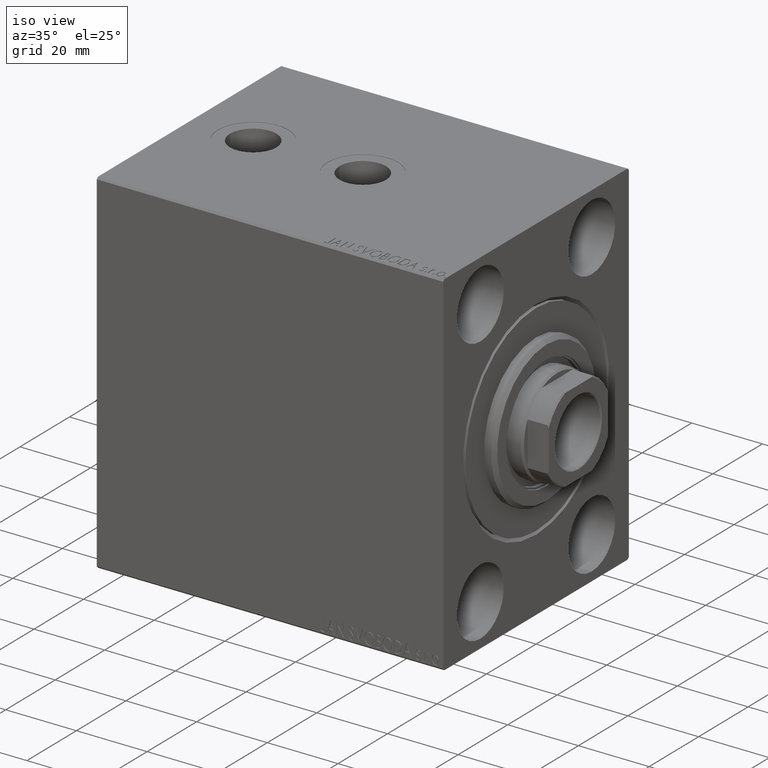
[diagram: clean part render]
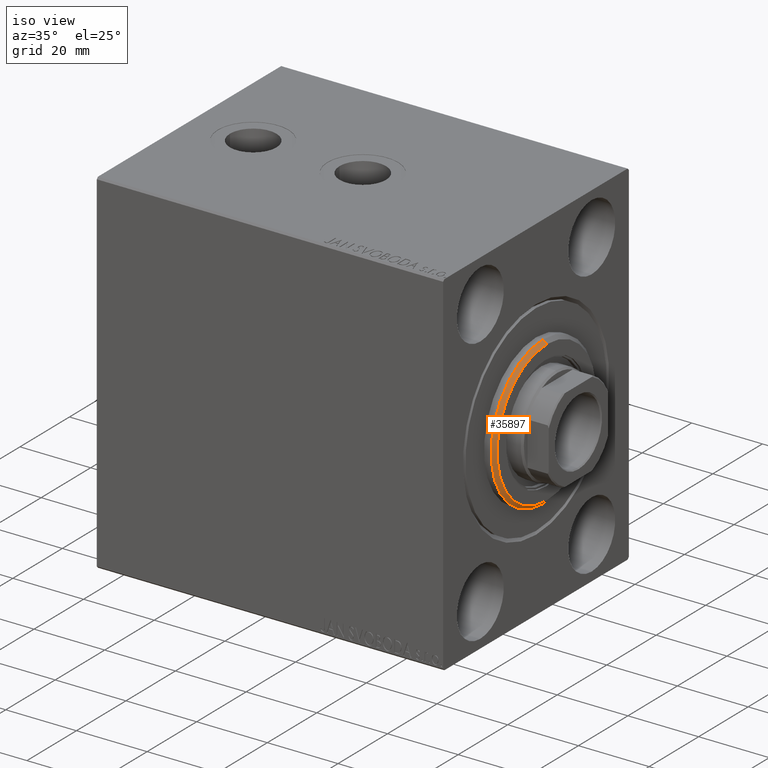
[diagram: same view with one face highlighted and labeled with its STEP entity id]
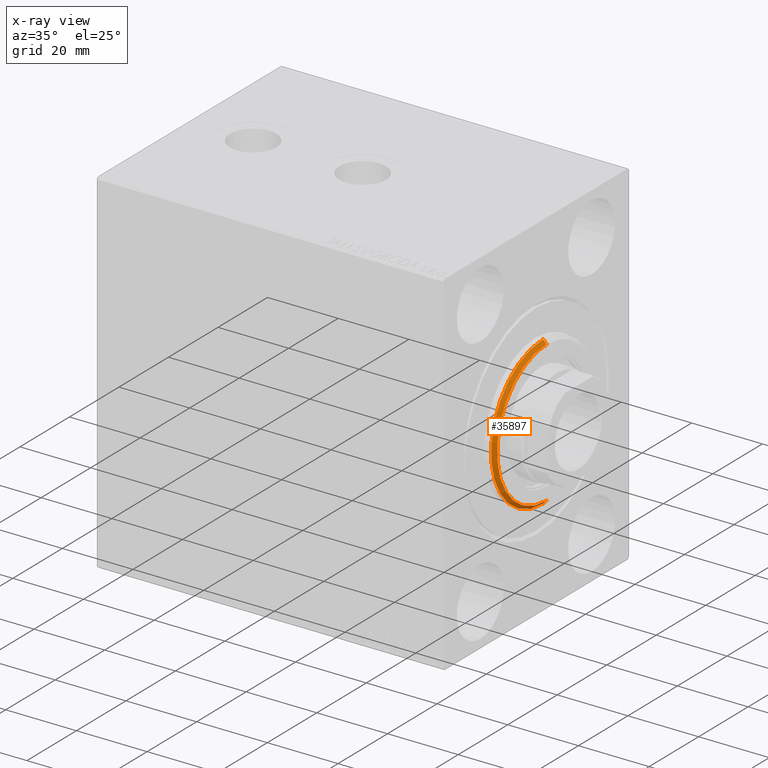
[diagram: x-ray of the same camera — body ghosted, the highlighted face saturated]
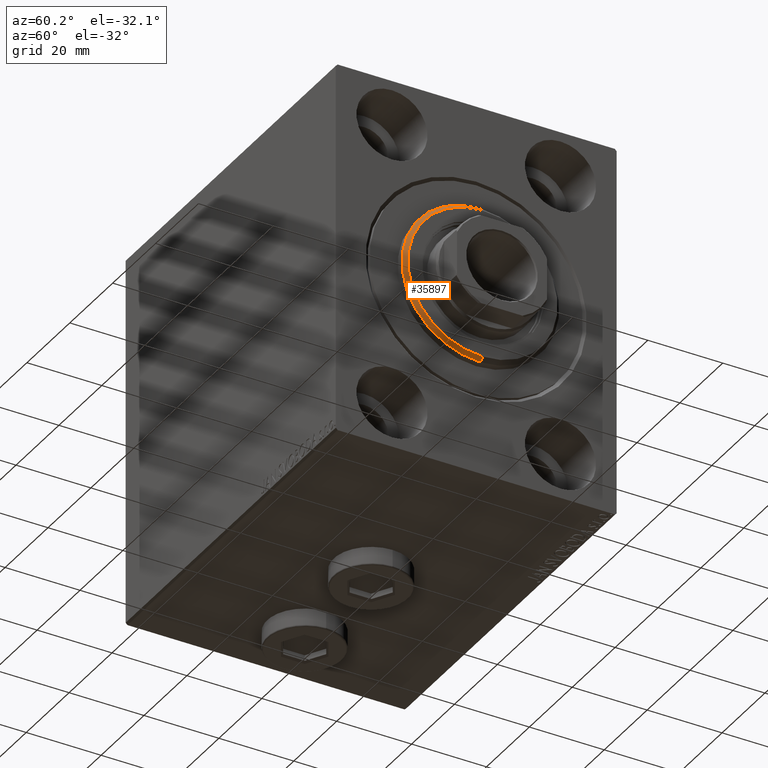
[diagram: same view with one face highlighted and labeled with its STEP entity id]
A machine part, iso view. The second image highlights one B-rep face of the part: STEP entity #35897.
The next image is the same camera in x-ray: the body ghosted, the highlighted face saturated — about 0% of this face is hidden behind the body in this view.
A second angle (auxiliary view) of the same face is appended — the face is thin or edge-on in the first view.
In plain terms, the highlighted conical surface has half-angle 45 deg.
Its self-contained STEP definition (entity closure, byte-faithful):
#1983 = EDGE_CURVE ( 'NONE', #23929, #36996, #33049, .T. ) ;
#2595 = AXIS2_PLACEMENT_3D ( 'NONE', #42428, #10560, #18216 ) ;
#4470 = DIRECTION ( 'NONE',  ( -0.7071067811865500152, 8.659560562354903276E-17, -0.7071067811865451302 ) ) ;
#6191 = VERTEX_POINT ( 'NONE', #10865 ) ;
#9551 = VERTEX_POINT ( 'NONE', #39630 ) ;
#10560 = DIRECTION ( 'NONE',  ( 1.000000000000000000, -0.000000000000000000, 0.000000000000000000 ) ) ;
#10865 = CARTESIAN_POINT ( 'NONE',  ( 2.000000000000009770, 0.000000000000000000, 21.00000000000000000 ) ) ;
#10995 = AXIS2_PLACEMENT_3D ( 'NONE', #34331, #34553, #45730 ) ;
#12372 = DIRECTION ( 'NONE',  ( -1.000000000000000000, 0.000000000000000000, 0.000000000000000000 ) ) ;
#12491 = VECTOR ( 'NONE', #4470, 1000.000000000000114 ) ;
#12885 = CONICAL_SURFACE ( 'NONE', #21777, 20.00000000000001776, 0.7853981633974447263 ) ;
#16677 = DIRECTION ( 'NONE',  ( -0.7071067811865500152, 0.000000000000000000, 0.7071067811865451302 ) ) ;
#18216 = DIRECTION ( 'NONE',  ( 0.000000000000000000, 0.000000000000000000, -1.000000000000000000 ) ) ;
#18394 = CARTESIAN_POINT ( 'NONE',  ( 3.000000000000000000, 2.449293598294708880E-15, -20.00000000000001776 ) ) ;
#20156 = CARTESIAN_POINT ( 'NONE',  ( 3.000000000000000000, 0.000000000000000000, 20.00000000000001776 ) ) ;
#20621 = LINE ( 'NONE', #20156, #41110 ) ;
#21777 = AXIS2_PLACEMENT_3D ( 'NONE', #41417, #12372, #34200 ) ;
#23106 = ORIENTED_EDGE ( 'NONE', *, *, #44126, .F. ) ;
#23283 = FACE_OUTER_BOUND ( 'NONE', #23823, .T. ) ;
#23823 = EDGE_LOOP ( 'NONE', ( #23106, #39863, #39782, #36404 ) ) ;
#23929 = VERTEX_POINT ( 'NONE', #38054 ) ;
#33049 = CIRCLE ( 'NONE', #2595, 20.00000000000001776 ) ;
#34200 = DIRECTION ( 'NONE',  ( 0.000000000000000000, 0.000000000000000000, 1.000000000000000000 ) ) ;
#34331 = CARTESIAN_POINT ( 'NONE',  ( 2.000000000000009770, 0.000000000000000000, 0.000000000000000000 ) ) ;
#34553 = DIRECTION ( 'NONE',  ( -1.000000000000000000, 0.000000000000000000, 0.000000000000000000 ) ) ;
#35897 = ADVANCED_FACE ( 'NONE', ( #23283 ), #12885, .T. ) ;
#36135 = EDGE_CURVE ( 'NONE', #23929, #6191, #20621, .T. ) ;
#36404 = ORIENTED_EDGE ( 'NONE', *, *, #43985, .F. ) ;
#36996 = VERTEX_POINT ( 'NONE', #44443 ) ;
#38054 = CARTESIAN_POINT ( 'NONE',  ( 3.000000000000000000, 0.000000000000000000, 20.00000000000001776 ) ) ;
#39630 = CARTESIAN_POINT ( 'NONE',  ( 2.000000000000009770, 2.571758278209441661E-15, -21.00000000000000000 ) ) ;
#39782 = ORIENTED_EDGE ( 'NONE', *, *, #36135, .T. ) ;
#39863 = ORIENTED_EDGE ( 'NONE', *, *, #1983, .F. ) ;
#40706 = CIRCLE ( 'NONE', #10995, 21.00000000000000000 ) ;
#41110 = VECTOR ( 'NONE', #16677, 1000.000000000000114 ) ;
#41417 = CARTESIAN_POINT ( 'NONE',  ( 3.000000000000000000, 0.000000000000000000, 0.000000000000000000 ) ) ;
#42428 = CARTESIAN_POINT ( 'NONE',  ( 3.000000000000000000, 0.000000000000000000, 0.000000000000000000 ) ) ;
#43058 = LINE ( 'NONE', #18394, #12491 ) ;
#43985 = EDGE_CURVE ( 'NONE', #9551, #6191, #40706, .T. ) ;
#44126 = EDGE_CURVE ( 'NONE', #36996, #9551, #43058, .T. ) ;
#44443 = CARTESIAN_POINT ( 'NONE',  ( 3.000000000000000000, 2.510525938252075270E-15, -20.00000000000001776 ) ) ;
#45730 = DIRECTION ( 'NONE',  ( 0.000000000000000000, 0.000000000000000000, -1.000000000000000000 ) ) ;